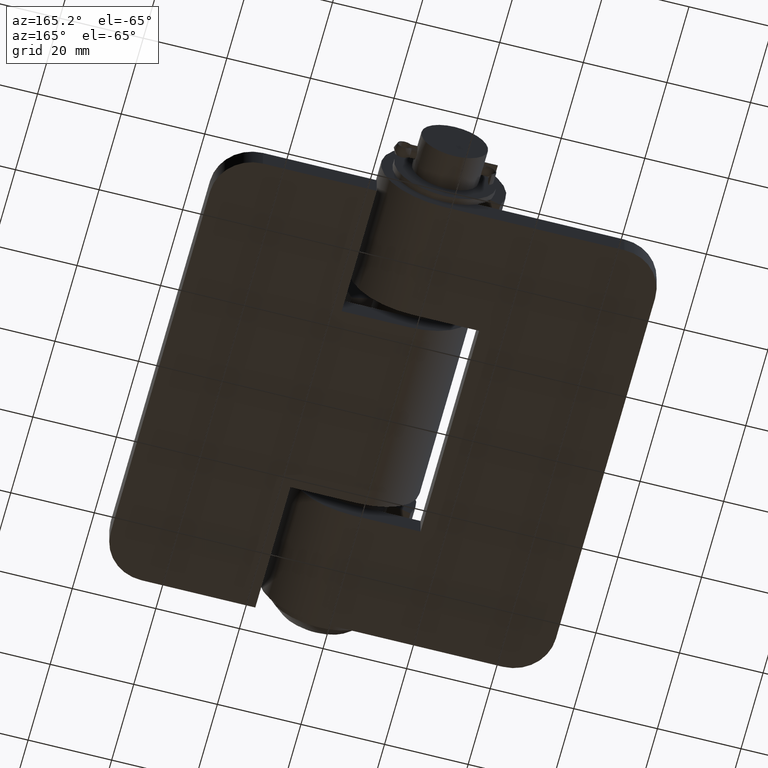
[diagram: clean part render]
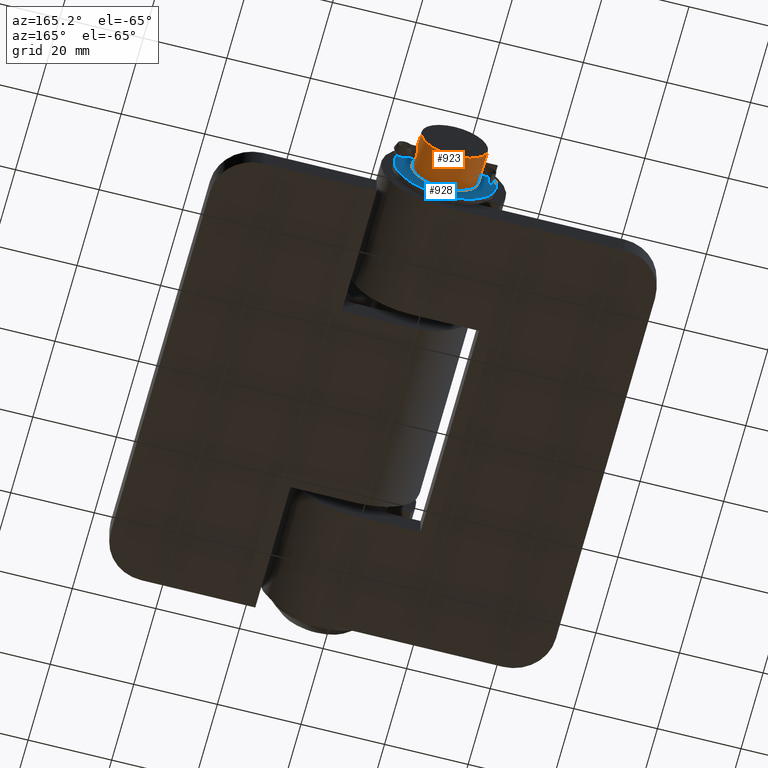
[diagram: same view with the hole feature highlighted: cylindrical wall and planar end face, labeled with their STEP entity ids]
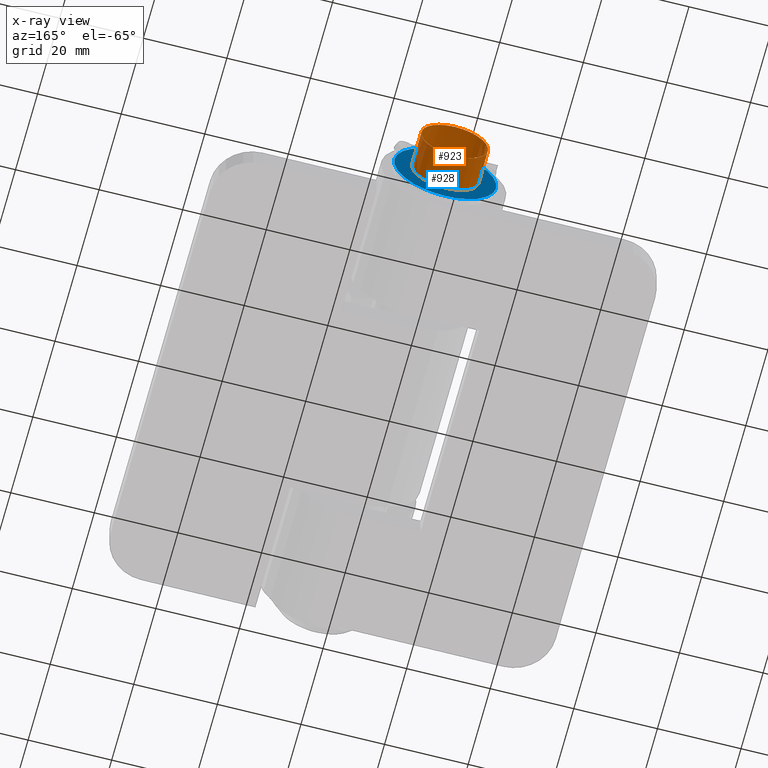
[diagram: x-ray of the same camera — body ghosted, the hole faces saturated]
A machine part, auxiliary view. The highlighted faces form one hole feature of diameter 16 mm: the cylindrical wall (entity #923, orange) and its adjacent planar end face (entity #928, blue) — they share a circular edge in the B-rep.
The next image is the same camera in x-ray (body ghosted, the hole faces saturated) — the bore reads through the body.
Wall:
#25=FACE_BOUND('',#153,.T.);
#26=FACE_BOUND('',#154,.T.);
#27=FACE_BOUND('',#155,.T.);
#34=B_SPLINE_CURVE_WITH_KNOTS('',3,(#1465,#1466,#1467,#1468,#1469,#1470,
#1471,#1472,#1473,#1474,#1475,#1476,#1477,#1478,#1479,#1480,#1481,#1482,
#1483,#1484,#1485,#1486,#1487,#1488,#1489,#1490,#1491,#1492,#1493,#1494,
#1495,#1496,#1497,#1498),.UNSPECIFIED.,.T.,.F.,(4,2,2,2,2,2,2,2,2,2,2,2,
2,2,2,2,4),(0.,0.0661536081961685,0.132307216392337,0.198455479344343,0.264603742296348,
0.330752005248354,0.39690026820036,0.463053876396528,0.529207484592697,
0.595361092788865,0.661514700985034,0.72766296393704,0.793811226889045,
0.859959489841051,0.926107752793057,0.992261360989225,1.05841496918539),
 .UNSPECIFIED.);
#35=B_SPLINE_CURVE_WITH_KNOTS('',3,(#1500,#1501,#1502,#1503,#1504,#1505,
#1506,#1507,#1508,#1509,#1510,#1511,#1512,#1513,#1514,#1515,#1516,#1517,
#1518,#1519,#1520,#1521,#1522,#1523,#1524,#1525,#1526,#1527,#1528,#1529,
#1530,#1531,#1532,#1533),.UNSPECIFIED.,.T.,.F.,(4,2,2,2,2,2,2,2,2,2,2,2,
2,2,2,2,4),(0.,0.0661536081961685,0.132307216392337,0.198455479344343,0.264603742296348,
0.330752005248354,0.39690026820036,0.463053876396528,0.529207484592697,
0.595361092788865,0.661514700985034,0.727662963937039,0.793811226889045,
0.859959489841051,0.926107752793057,0.992261360989225,1.05841496918539),
 .UNSPECIFIED.);
#95=FACE_OUTER_BOUND('',#152,.T.);
#152=EDGE_LOOP('',(#711));
#153=EDGE_LOOP('',(#712));
#154=EDGE_LOOP('',(#713));
#155=EDGE_LOOP('',(#714));
#366=CIRCLE('',#997,8.);
#367=CIRCLE('',#998,8.);
#433=VERTEX_POINT('',#1464);
#434=VERTEX_POINT('',#1499);
#435=VERTEX_POINT('',#1535);
#436=VERTEX_POINT('',#1537);
#537=EDGE_CURVE('',#433,#433,#34,.T.);
#538=EDGE_CURVE('',#434,#434,#35,.T.);
#539=EDGE_CURVE('',#435,#435,#366,.T.);
#540=EDGE_CURVE('',#436,#436,#367,.T.);
#711=ORIENTED_EDGE('',*,*,#539,.F.);
#712=ORIENTED_EDGE('',*,*,#537,.T.);
#713=ORIENTED_EDGE('',*,*,#538,.T.);
#714=ORIENTED_EDGE('',*,*,#540,.F.);
#892=CYLINDRICAL_SURFACE('',#996,8.);
#923=ADVANCED_FACE('',(#95,#25,#26,#27),#892,.T.);
#996=AXIS2_PLACEMENT_3D('',#1534,#1167,#1168);
#997=AXIS2_PLACEMENT_3D('',#1536,#1169,#1170);
#998=AXIS2_PLACEMENT_3D('',#1538,#1171,#1172);
#1167=DIRECTION('center_axis',(0.,9.25185853854297E-17,-1.));
#1168=DIRECTION('ref_axis',(0.,1.,0.));
#1169=DIRECTION('center_axis',(0.,9.25185853854297E-17,-1.));
#1170=DIRECTION('ref_axis',(0.,1.,0.));
#1171=DIRECTION('center_axis',(0.,-9.25185853854297E-17,1.));
#1172=DIRECTION('ref_axis',(0.,1.,0.));
#1464=CARTESIAN_POINT('',(7.806247497998,13.25,-60.));
#1465=CARTESIAN_POINT('Ctrl Pts',(7.806247497998,13.25,-60.));
#1466=CARTESIAN_POINT('Ctrl Pts',(7.806247497998,13.25,-59.7794879726794));
#1467=CARTESIAN_POINT('Ctrl Pts',(7.81656151369615,13.2942158074746,-59.5447846264589));
#1468=CARTESIAN_POINT('Ctrl Pts',(7.85345055027074,13.4730265593068,-59.1138436559076));
#1469=CARTESIAN_POINT('Ctrl Pts',(7.8794534058773,13.6075844103336,-58.9175418555135));
#1470=CARTESIAN_POINT('Ctrl Pts',(7.9279795931108,13.9175293331563,-58.6075969326908));
#1471=CARTESIAN_POINT('Ctrl Pts',(7.95370820844926,14.1138364155303,-58.4730292874915));
#1472=CARTESIAN_POINT('Ctrl Pts',(7.98996554209155,14.544795873394,-58.2942114168473));
#1473=CARTESIAN_POINT('Ctrl Pts',(8.,14.77950579016,-58.25));
#1474=CARTESIAN_POINT('Ctrl Pts',(8.,15.22049420984,-58.25));
#1475=CARTESIAN_POINT('Ctrl Pts',(7.98996554209155,15.455204126606,-58.2942114168473));
#1476=CARTESIAN_POINT('Ctrl Pts',(7.95370820844926,15.8861635844697,-58.4730292874915));
#1477=CARTESIAN_POINT('Ctrl Pts',(7.92797959311081,16.0824706668437,-58.6075969326908));
#1478=CARTESIAN_POINT('Ctrl Pts',(7.8794534058773,16.3924155896664,-58.9175418555135));
#1479=CARTESIAN_POINT('Ctrl Pts',(7.85345055027074,16.5269734406932,-59.1138436559076));
#1480=CARTESIAN_POINT('Ctrl Pts',(7.81656151369615,16.7057841925254,-59.5447846264589));
#1481=CARTESIAN_POINT('Ctrl Pts',(7.806247497998,16.75,-59.7794879726794));
#1482=CARTESIAN_POINT('Ctrl Pts',(7.806247497998,16.75,-60.2205120273206));
#1483=CARTESIAN_POINT('Ctrl Pts',(7.81656151369615,16.7057841925254,-60.4552153735411));
#1484=CARTESIAN_POINT('Ctrl Pts',(7.85345055027074,16.5269734406932,-60.8861563440924));
#1485=CARTESIAN_POINT('Ctrl Pts',(7.8794534058773,16.3924155896664,-61.0824581444865));
#1486=CARTESIAN_POINT('Ctrl Pts',(7.92797959311081,16.0824706668437,-61.3924030673092));
#1487=CARTESIAN_POINT('Ctrl Pts',(7.95370820844926,15.8861635844697,-61.5269707125085));
#1488=CARTESIAN_POINT('Ctrl Pts',(7.98996554209155,15.455204126606,-61.7057885831527));
#1489=CARTESIAN_POINT('Ctrl Pts',(8.,15.22049420984,-61.75));
#1490=CARTESIAN_POINT('Ctrl Pts',(8.,14.77950579016,-61.75));
#1491=CARTESIAN_POINT('Ctrl Pts',(7.98996554209155,14.544795873394,-61.7057885831527));
#1492=CARTESIAN_POINT('Ctrl Pts',(7.95370820844926,14.1138364155303,-61.5269707125085));
#1493=CARTESIAN_POINT('Ctrl Pts',(7.92797959311081,13.9175293331563,-61.3924030673092));
#1494=CARTESIAN_POINT('Ctrl Pts',(7.8794534058773,13.6075844103336,-61.0824581444865));
#1495=CARTESIAN_POINT('Ctrl Pts',(7.85345055027074,13.4730265593068,-60.8861563440924));
#1496=CARTESIAN_POINT('Ctrl Pts',(7.81656151369615,13.2942158074746,-60.4552153735411));
#1497=CARTESIAN_POINT('Ctrl Pts',(7.806247497998,13.25,-60.2205120273206));
#1498=CARTESIAN_POINT('Ctrl Pts',(7.806247497998,13.25,-60.));
#1499=CARTESIAN_POINT('',(-7.806247497998,13.25,-60.));
#1500=CARTESIAN_POINT('Ctrl Pts',(-7.806247497998,13.25,-60.));
#1501=CARTESIAN_POINT('Ctrl Pts',(-7.806247497998,13.25,-60.2205120273206));
#1502=CARTESIAN_POINT('Ctrl Pts',(-7.81656151369615,13.2942158074746,-60.4552153735411));
#1503=CARTESIAN_POINT('Ctrl Pts',(-7.85345055027074,13.4730265593068,-60.8861563440924));
#1504=CARTESIAN_POINT('Ctrl Pts',(-7.8794534058773,13.6075844103336,-61.0824581444865));
#1505=CARTESIAN_POINT('Ctrl Pts',(-7.92797959311081,13.9175293331563,-61.3924030673092));
#1506=CARTESIAN_POINT('Ctrl Pts',(-7.95370820844926,14.1138364155303,-61.5269707125085));
#1507=CARTESIAN_POINT('Ctrl Pts',(-7.98996554209155,14.544795873394,-61.7057885831527));
#1508=CARTESIAN_POINT('Ctrl Pts',(-8.,14.77950579016,-61.75));
#1509=CARTESIAN_POINT('Ctrl Pts',(-8.,15.22049420984,-61.75));
#1510=CARTESIAN_POINT('Ctrl Pts',(-7.98996554209155,15.455204126606,-61.7057885831527));
#1511=CARTESIAN_POINT('Ctrl Pts',(-7.95370820844926,15.8861635844697,-61.5269707125085));
#1512=CARTESIAN_POINT('Ctrl Pts',(-7.92797959311081,16.0824706668437,-61.3924030673092));
#1513=CARTESIAN_POINT('Ctrl Pts',(-7.8794534058773,16.3924155896664,-61.0824581444865));
#1514=CARTESIAN_POINT('Ctrl Pts',(-7.85345055027074,16.5269734406932,-60.8861563440924));
#1515=CARTESIAN_POINT('Ctrl Pts',(-7.81656151369615,16.7057841925254,-60.4552153735411));
#1516=CARTESIAN_POINT('Ctrl Pts',(-7.806247497998,16.75,-60.2205120273206));
#1517=CARTESIAN_POINT('Ctrl Pts',(-7.806247497998,16.75,-59.7794879726794));
#1518=CARTESIAN_POINT('Ctrl Pts',(-7.81656151369615,16.7057841925254,-59.5447846264589));
#1519=CARTESIAN_POINT('Ctrl Pts',(-7.85345055027074,16.5269734406932,-59.1138436559076));
#1520=CARTESIAN_POINT('Ctrl Pts',(-7.8794534058773,16.3924155896664,-58.9175418555135));
#1521=CARTESIAN_POINT('Ctrl Pts',(-7.92797959311081,16.0824706668437,-58.6075969326908));
#1522=CARTESIAN_POINT('Ctrl Pts',(-7.95370820844926,15.8861635844697,-58.4730292874915));
#1523=CARTESIAN_POINT('Ctrl Pts',(-7.98996554209155,15.455204126606,-58.2942114168473));
#1524=CARTESIAN_POINT('Ctrl Pts',(-8.,15.22049420984,-58.25));
#1525=CARTESIAN_POINT('Ctrl Pts',(-8.,14.77950579016,-58.25));
#1526=CARTESIAN_POINT('Ctrl Pts',(-7.98996554209155,14.544795873394,-58.2942114168473));
#1527=CARTESIAN_POINT('Ctrl Pts',(-7.95370820844926,14.1138364155303,-58.4730292874915));
#1528=CARTESIAN_POINT('Ctrl Pts',(-7.9279795931108,13.9175293331563,-58.6075969326908));
#1529=CARTESIAN_POINT('Ctrl Pts',(-7.8794534058773,13.6075844103336,-58.9175418555135));
#1530=CARTESIAN_POINT('Ctrl Pts',(-7.85345055027074,13.4730265593068,-59.1138436559076));
#1531=CARTESIAN_POINT('Ctrl Pts',(-7.81656151369615,13.2942158074746,-59.5447846264589));
#1532=CARTESIAN_POINT('Ctrl Pts',(-7.806247497998,13.25,-59.7794879726794));
#1533=CARTESIAN_POINT('Ctrl Pts',(-7.806247497998,13.25,-60.));
#1534=CARTESIAN_POINT('Origin',(0.,15.,-5.));
#1535=CARTESIAN_POINT('',(0.,23.,-65.));
#1536=CARTESIAN_POINT('Origin',(0.,15.,-65.));
#1537=CARTESIAN_POINT('',(9.79685083057902E-16,7.00000000000001,-56.5));
#1538=CARTESIAN_POINT('Origin',(0.,15.,-56.5));
End face:
#31=FACE_BOUND('',#164,.T.);
#60=PLANE('',#1007);
#100=FACE_OUTER_BOUND('',#163,.T.);
#163=EDGE_LOOP('',(#722));
#164=EDGE_LOOP('',(#723));
#367=CIRCLE('',#998,8.);
#371=CIRCLE('',#1006,12.25);
#436=VERTEX_POINT('',#1537);
#440=VERTEX_POINT('',#1549);
#540=EDGE_CURVE('',#436,#436,#367,.T.);
#544=EDGE_CURVE('',#440,#440,#371,.T.);
#722=ORIENTED_EDGE('',*,*,#544,.T.);
#723=ORIENTED_EDGE('',*,*,#540,.T.);
#928=ADVANCED_FACE('',(#100,#31),#60,.T.);
#998=AXIS2_PLACEMENT_3D('',#1538,#1171,#1172);
#1006=AXIS2_PLACEMENT_3D('',#1550,#1187,#1188);
#1007=AXIS2_PLACEMENT_3D('',#1551,#1189,#1190);
#1171=DIRECTION('center_axis',(0.,-9.25185853854297E-17,1.));
#1172=DIRECTION('ref_axis',(0.,1.,0.));
#1187=DIRECTION('center_axis',(0.,9.25185853854297E-17,-1.));
#1188=DIRECTION('ref_axis',(0.,1.,0.));
#1189=DIRECTION('center_axis',(0.,9.25185853854297E-17,-1.));
#1190=DIRECTION('ref_axis',(-1.,0.,0.));
#1537=CARTESIAN_POINT('',(9.79685083057902E-16,7.00000000000001,-56.5));
#1538=CARTESIAN_POINT('Origin',(0.,15.,-56.5));
#1549=CARTESIAN_POINT('',(0.,27.25,-56.5));
#1550=CARTESIAN_POINT('Origin',(0.,15.,-56.5));
#1551=CARTESIAN_POINT('Origin',(0.,21.125,-56.5));